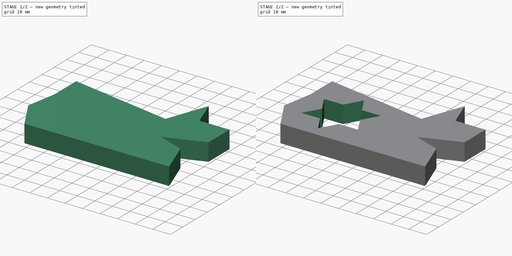
[diagram: build sequence overview — one tinted view per stage of 2, left to right]
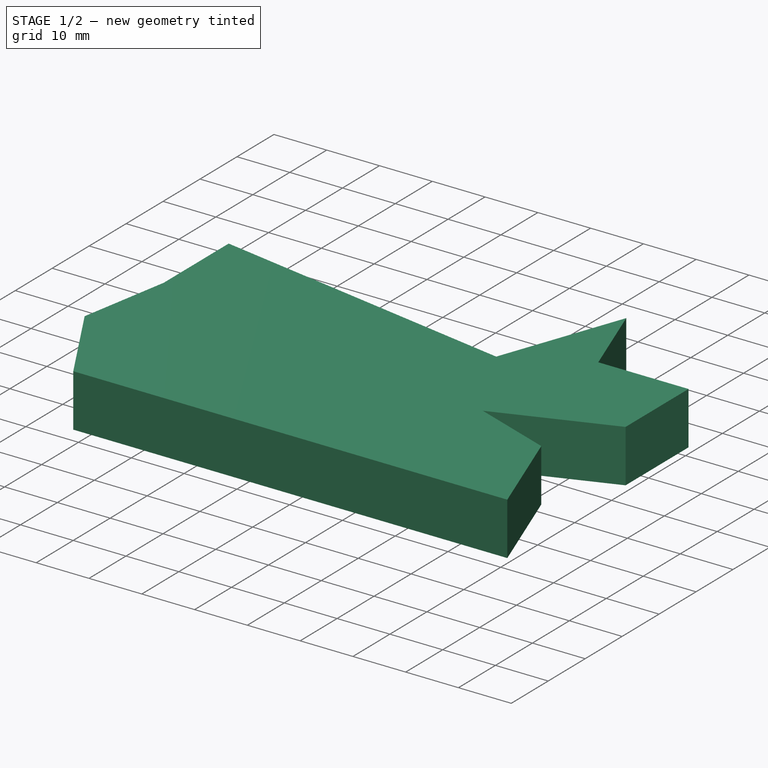
[diagram: stage 1 of 2 — iso view after this stage's code; geometry added in this stage tinted green]
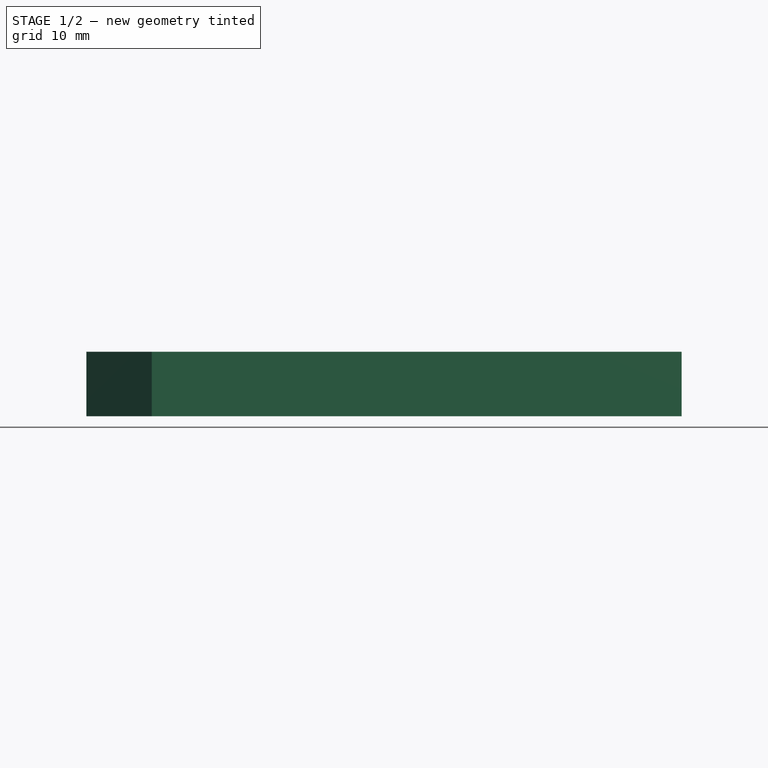
[diagram: stage 1 of 2 — front view after this stage's code; geometry added in this stage tinted green]
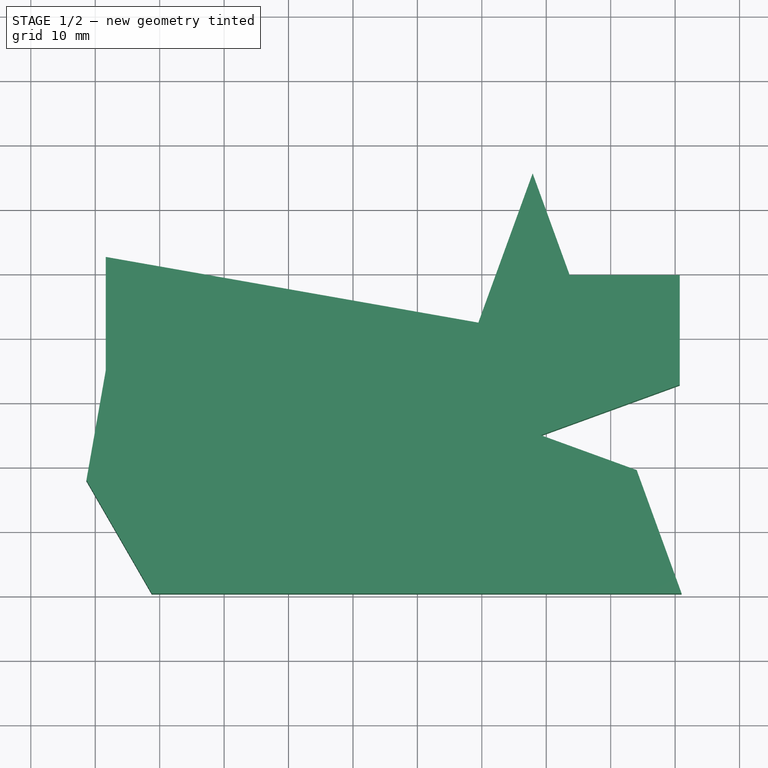
[diagram: stage 1 of 2 — top view after this stage's code; geometry added in this stage tinted green]
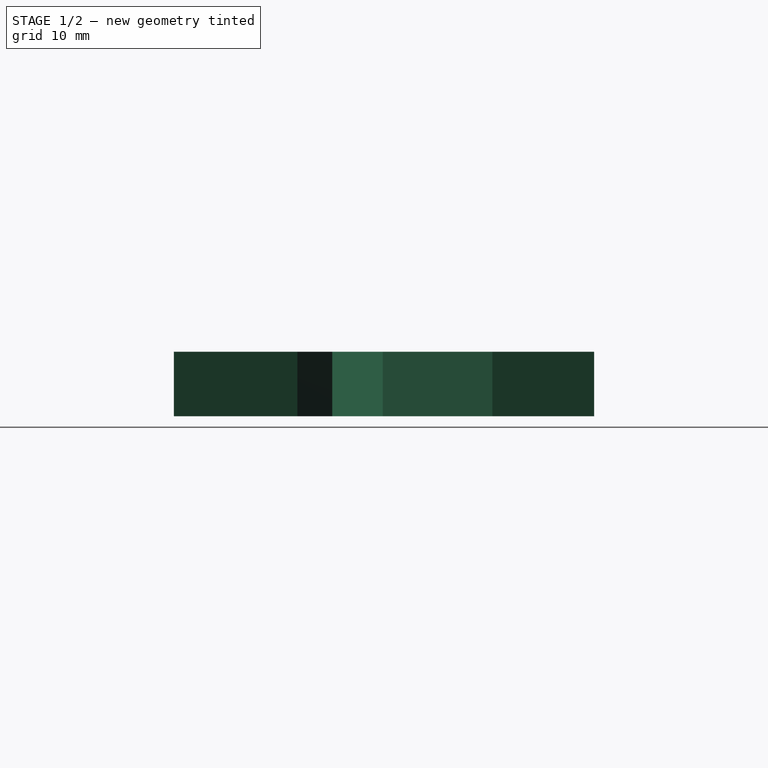
[diagram: stage 1 of 2 — right view after this stage's code; geometry added in this stage tinted green]
FCSTD DOCUMENT  (FreeCAD 0.20R25065 (Git))
Label: brim_ears
License: All rights reserved
LicenseURL: http://en.wikipedia.org/wiki/All_rights_reserved
objects: Sketcher::SketchObject×2, PartDesign::Pad×1, PartDesign::Pocket×1, PartDesign::Body×1
note: 7 computed .brp shape members not serialized (recipe doc carries the construction recipe); baked Part::Feature solids carry a one-line shape summary decoded from their .brp

FEATURE [Sketcher::SketchObject] Sketch
  FullyConstrained = false
  MapMode = 5
  Support = -> [XY_Plane]
  sketch-geometry (12):
    g0: LineSegment StartX=-41.2317 StartY=-29.6609 StartZ=0 EndX=41.0091 EndY=-29.6609 EndZ=0
    g1: LineSegment StartX=41.0091 StartY=-29.6609 StartZ=0 EndX=34.0358 EndY=-10.5019 EndZ=0
    g2: LineSegment StartX=34.0358 StartY=-10.5019 StartZ=0 EndX=19.1694 EndY=-5.09099 EndZ=0
    g3: LineSegment StartX=19.1694 StartY=-5.09099 StartZ=0 EndX=40.7219 EndY=2.75347 EndZ=0
    g4: LineSegment StartX=40.7219 StartY=2.75347 StartZ=0 EndX=40.7219 EndY=19.7741 EndZ=0
    g5: LineSegment StartX=40.7219 StartY=19.7741 StartZ=0 EndX=23.6298 EndY=19.7741 EndZ=0
    g6: LineSegment StartX=23.6298 StartY=19.7741 StartZ=0 EndX=17.8881 EndY=35.5494 EndZ=0
    g7: LineSegment StartX=17.8881 StartY=35.5494 StartZ=0 EndX=9.4585 EndY=12.3893 EndZ=0
    g8: LineSegment StartX=9.4585 StartY=12.3893 StartZ=0 EndX=-48.3654 EndY=22.5852 EndZ=0
    g9: LineSegment StartX=-48.3654 StartY=22.5852 StartZ=0 EndX=-48.3654 EndY=4.98742 EndZ=0
    g10: LineSegment StartX=-48.3654 StartY=4.98742 StartZ=0 EndX=-51.3765 EndY=-12.0895 EndZ=0
    g11: LineSegment StartX=-51.3765 StartY=-12.0895 StartZ=0 EndX=-41.2317 EndY=-29.6609 EndZ=0
  constraints (24):
    c: Coincident(g0,g1)
    c: Coincident(g1,g2)
    c: Coincident(g2,g3)
    c: Coincident(g3,g4)
    c: Coincident(g4,g5)
    c: Coincident(g5,g6)
    c: Coincident(g6,g7)
    c: Coincident(g7,g8)
    c: Coincident(g8,g9)
    c: Coincident(g9,g10)
    c: Coincident(g10,g11)
    c: Coincident(g11,g0)
    c: Angle(g7,g6) = 0.698132
    c: Angle(g5,g6) = 1.91986
    c: Angle(g2,g3) = 0.698132
    c: Angle(g1,g0) = 1.22173
    c: Angle(g0,g11) = 2.0944
    c: Angle(g11,g10) = 2.44346
    c: Angle(g4,g3) = 1.91986
    c: Angle(g9,g8) = 1.39626
    c: Angle(g9,g10) = 2.96706
    c: Angle(g2,g1) = 2.26893
    c: Angle(g5,g4) = 1.5708
    c: Horizontal(g5)
FEATURE [PartDesign::Pad] Pad
  Direction = (0,0,1)
  Length = 10
  Length2 = 100
  Profile = -> Sketch
  Type = 0
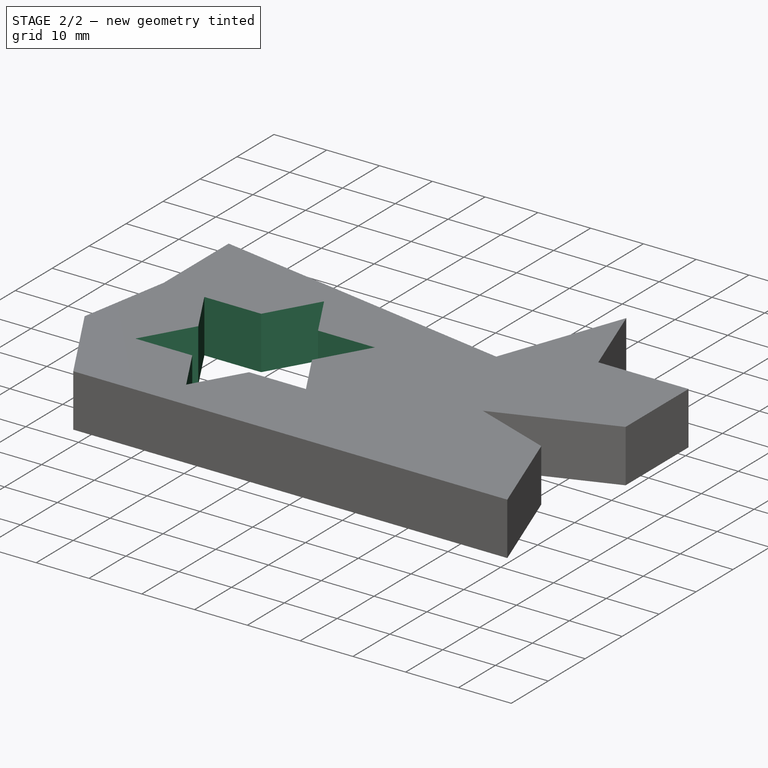
[diagram: stage 2 of 2 — iso view after this stage's code; geometry added in this stage tinted green]
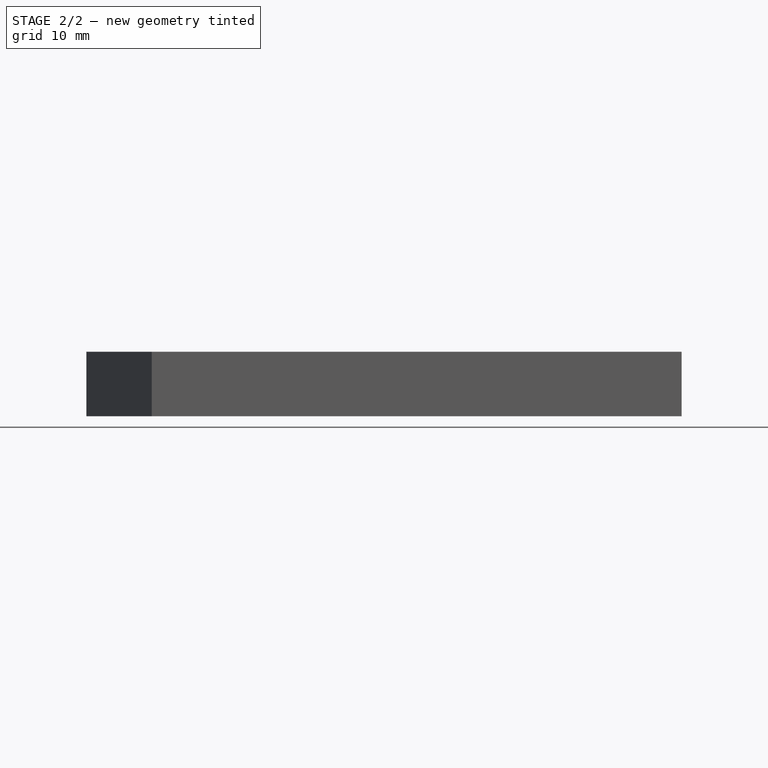
[diagram: stage 2 of 2 — front view after this stage's code; geometry added in this stage tinted green]
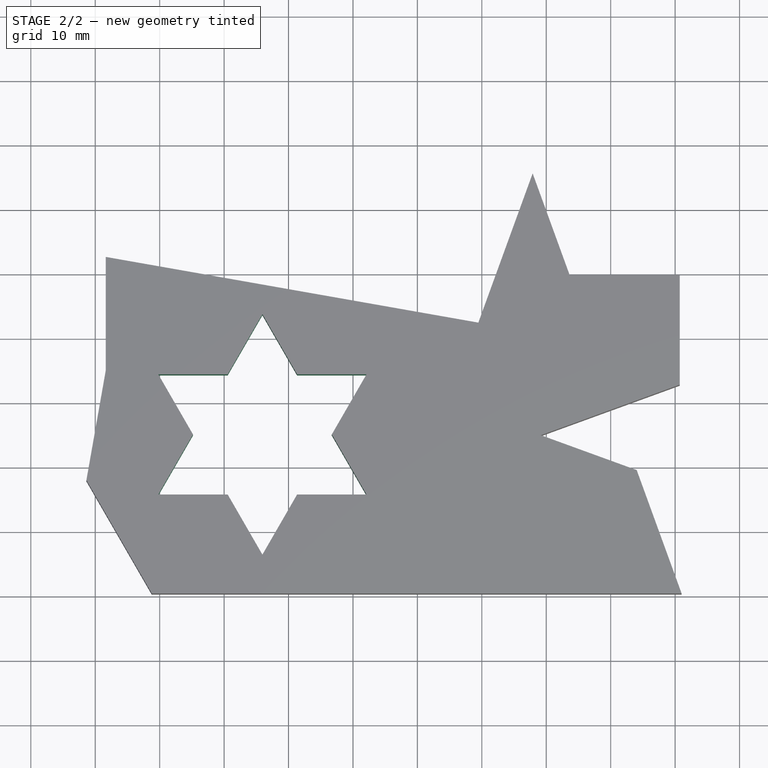
[diagram: stage 2 of 2 — top view after this stage's code; geometry added in this stage tinted green]
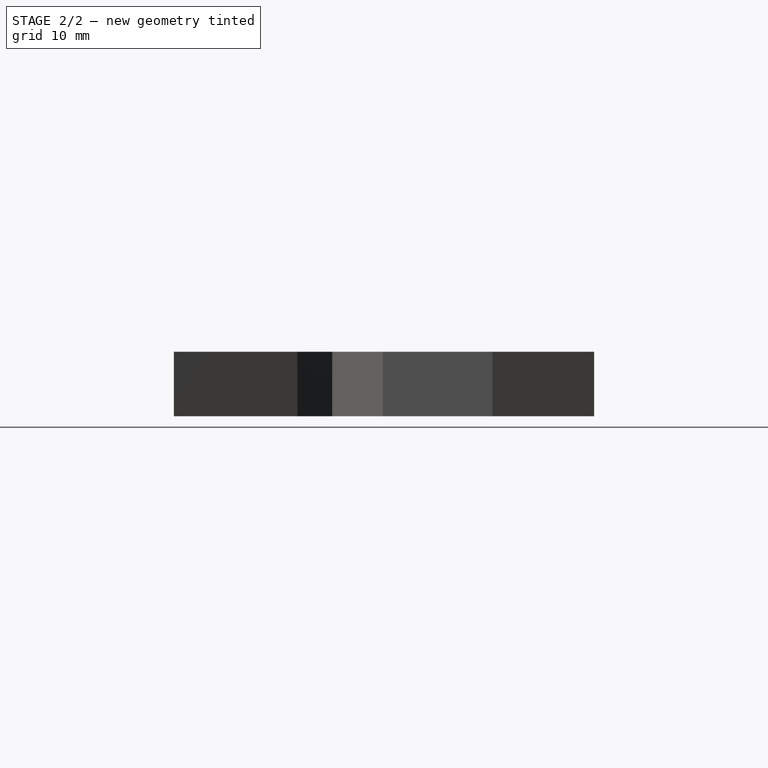
[diagram: stage 2 of 2 — right view after this stage's code; geometry added in this stage tinted green]
FEATURE [Sketcher::SketchObject] Sketch001
  FullyConstrained = false
  MapMode = 5
  Placement = pos=(0,0,10) rot=(0,0,1;0rad)
  Support = -> [Pad]
  sketch-geometry (14):
    g0: LineSegment StartX=-7.90264 StartY=-14.3 StartZ=0 EndX=-13.2872 EndY=-4.97361 EndZ=0
    g1: LineSegment StartX=-24.0564 StartY=13.6791 StartZ=0 EndX=-29.4409 EndY=4.35274 EndZ=0
    g2: LineSegment StartX=-40.2101 StartY=-14.3 StartZ=0 EndX=-29.4409 EndY=-14.3 EndZ=0
    g3: Circle CenterX=-24.0564 CenterY=-4.97361 CenterZ=0 NormalX=0 NormalY=0 NormalZ=1 AngleXU=0 Radius=18.6527
    g4: LineSegment StartX=-7.90264 StartY=4.35274 StartZ=0 EndX=-18.6718 EndY=4.35274 EndZ=0
    g5: LineSegment StartX=-40.2101 StartY=4.35274 StartZ=0 EndX=-34.8255 EndY=-4.97361 EndZ=0
    g6: LineSegment StartX=-24.0564 StartY=-23.6263 StartZ=0 EndX=-18.6718 EndY=-14.3 EndZ=0
    g7: Circle CenterX=-24.0564 CenterY=-4.97361 CenterZ=0 NormalX=0 NormalY=0 NormalZ=1 AngleXU=0 Radius=18.6527
    g8: LineSegment StartX=-18.6718 StartY=4.35274 StartZ=0 EndX=-24.0564 EndY=13.6791 EndZ=0
    g9: LineSegment StartX=-13.2872 StartY=-4.97361 StartZ=0 EndX=-7.90264 EndY=4.35274 EndZ=0
    g10: LineSegment StartX=-18.6718 StartY=-14.3 StartZ=0 EndX=-7.90264 EndY=-14.3 EndZ=0
    g11: LineSegment StartX=-29.4409 StartY=-14.3 StartZ=0 EndX=-24.0564 EndY=-23.6263 EndZ=0
    g12: LineSegment StartX=-34.8255 StartY=-4.97361 StartZ=0 EndX=-40.2101 EndY=-14.3 EndZ=0
    g13: LineSegment StartX=-29.4409 StartY=4.35274 StartZ=0 EndX=-40.2101 EndY=4.35274 EndZ=0
  constraints (22):
    c: Coincident(g8,g1)
    c: Coincident(g12,g2)
    c: Coincident(g10,g0)
    c: PointOnObject(g8,g3)
    c: PointOnObject(g12,g3)
    c: PointOnObject(g10,g3)
    c: Coincident(g13,g5)
    c: Coincident(g11,g6)
    c: Coincident(g9,g4)
    c: PointOnObject(g13,g7)
    c: PointOnObject(g11,g7)
    c: PointOnObject(g9,g7)
    c: Coincident(g7,g3)
    c: PointOnObject(g9,g3)
    c: Horizontal(g4)
    c: Horizontal(g2)
    c: Coincident(g9,g0)
    c: Coincident(g10,g6)
    c: Coincident(g11,g2)
    c: Coincident(g12,g5)
    c: Coincident(g4,g8)
    c: Coincident(g13,g1)
FEATURE [PartDesign::Pocket] Pocket
  BaseFeature = -> Pad
  Length = 5
  Length2 = 100
  Profile = -> Sketch001
  Type = 1
FEATURE [PartDesign::Body] Body
  Group = -> [Sketch,Pad,Sketch001,Pocket]
  Origin = -> Origin
  Tip = -> Pocket
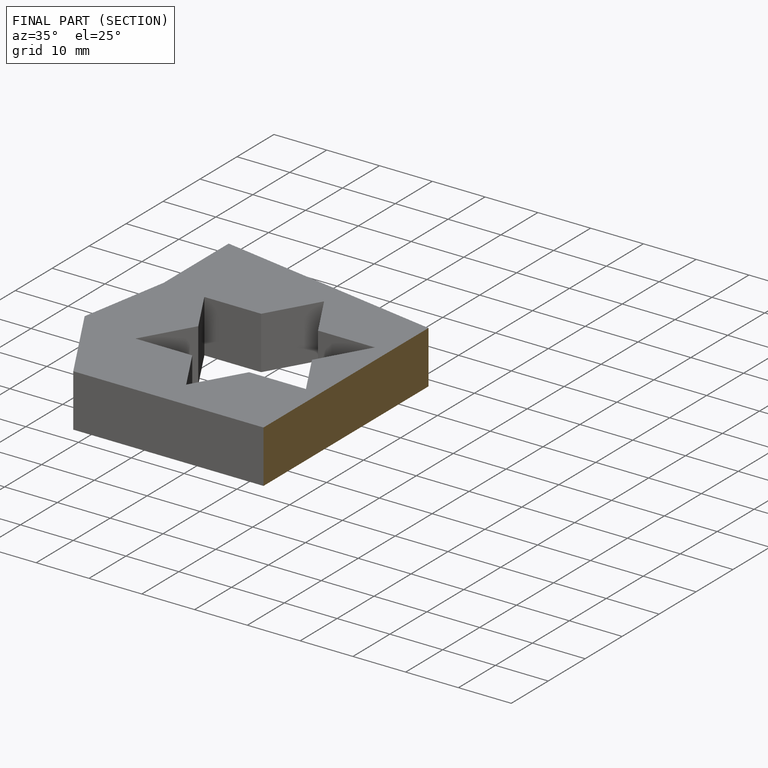
[diagram: finished part — half-section view (interior)]
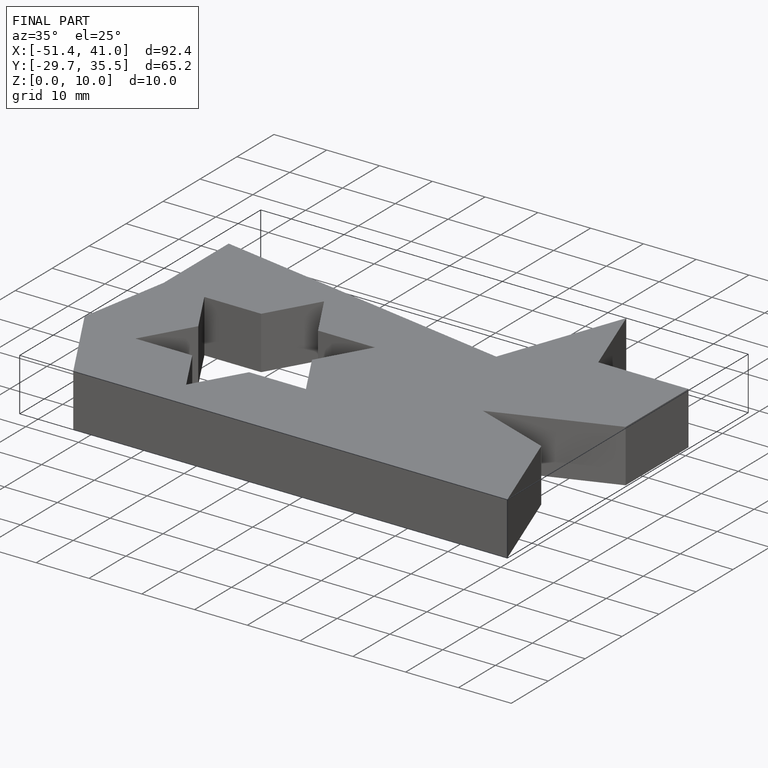
[diagram: finished part — iso view with bounding-box wireframe]
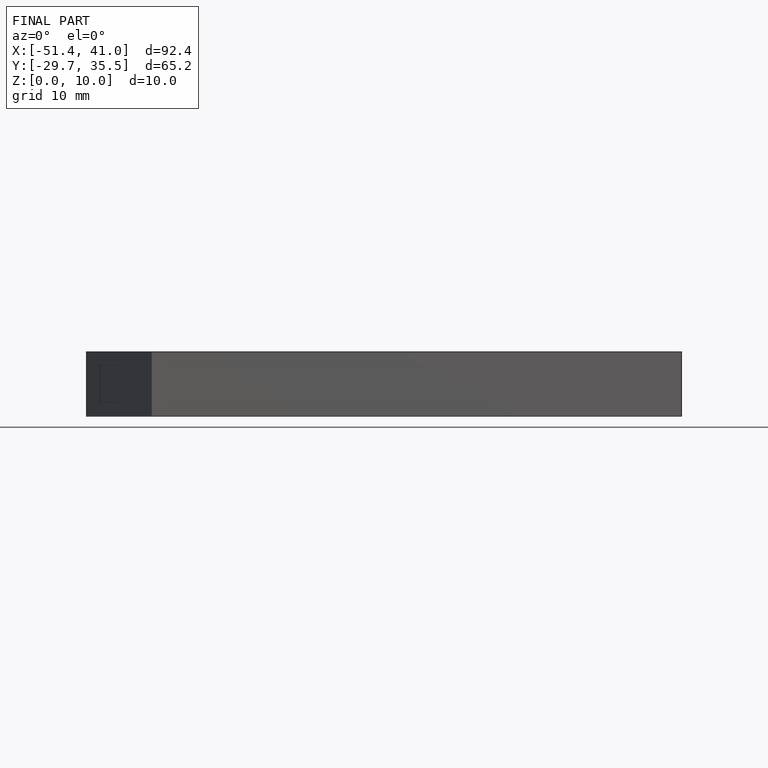
[diagram: finished part — front view with bounding-box wireframe]
